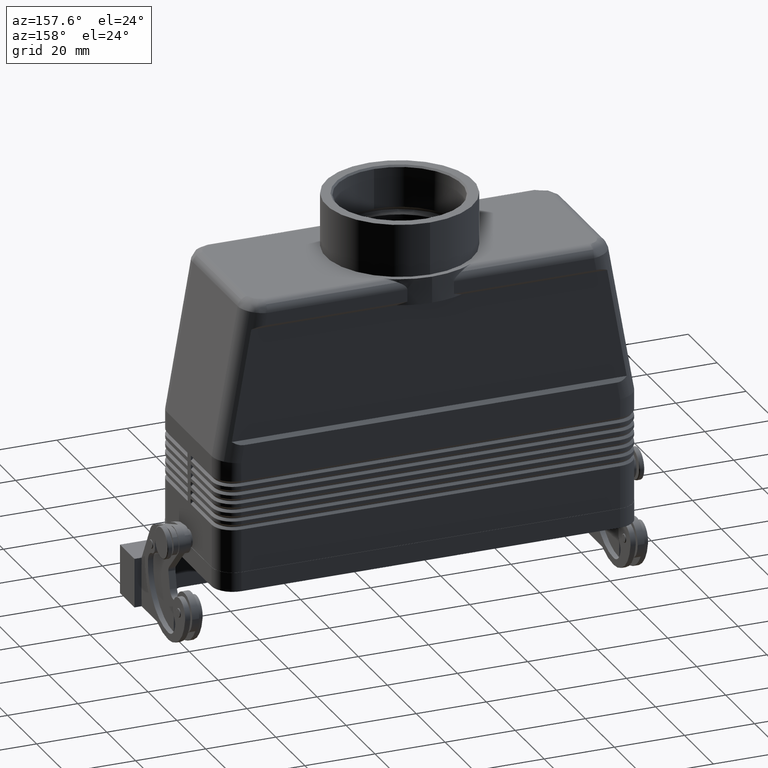
[diagram: clean part render]
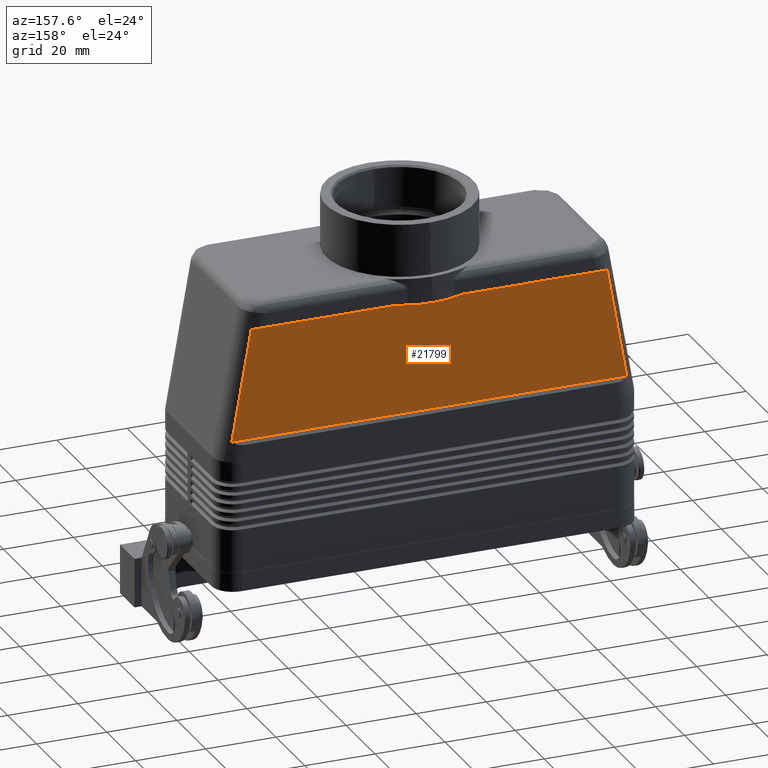
[diagram: same view with one face highlighted and labeled with its STEP entity id]
A machine part, auxiliary view. The second image highlights one B-rep face of the part: STEP entity #21799.
In plain terms, the highlighted face is a freeform B-spline surface patch.
Its self-contained STEP definition (entity closure, byte-faithful):
#4984=CARTESIAN_POINT('',(56.305431008555836,20.499999999999993,42.999999999999986));
#4985=VERTEX_POINT('',#4984);
#4993=CARTESIAN_POINT('',(50.751131116239200,20.500000000000000,74.500000000000014));
#4994=VERTEX_POINT('',#4993);
#4995=CARTESIAN_POINT('',(56.305431008555836,20.499999999999993,42.999999999999986));
#4996=DIRECTION('',(-0.173648177666930,2.221422E-016,0.984807753012208));
#4997=VECTOR('',#4996,31.985938274400993);
#4998=LINE('',#4995,#4997);
#4999=EDGE_CURVE('',#4985,#4994,#4998,.T.);
#5254=CARTESIAN_POINT('',(9.273618495495747,20.499999999999979,74.500000000000014));
#5255=VERTEX_POINT('',#5254);
#5364=CARTESIAN_POINT('',(-50.751131116239165,20.500000000000000,74.500000000000028));
#5365=VERTEX_POINT('',#5364);
#5373=CARTESIAN_POINT('',(-56.305431008555828,20.499999999999993,42.999999999999986));
#5374=VERTEX_POINT('',#5373);
#5375=CARTESIAN_POINT('',(-50.751131116239165,20.500000000000000,74.500000000000028));
#5376=DIRECTION('',(-0.173648177666931,-2.221422E-016,-0.984807753012208));
#5377=VECTOR('',#5376,31.985938274401015);
#5378=LINE('',#5375,#5377);
#5379=EDGE_CURVE('',#5365,#5374,#5378,.T.);
#21470=CARTESIAN_POINT('',(-9.273618495495747,20.499999999999979,74.500000000000014));
#21471=VERTEX_POINT('',#21470);
#21472=CARTESIAN_POINT('',(9.273618495495747,20.499999999999979,74.500000000000014));
#21473=DIRECTION('',(-1.0,0.0,0.0));
#21474=VECTOR('',#21473,18.547236990991493);
#21475=LINE('',#21472,#21474);
#21476=EDGE_CURVE('',#5255,#21471,#21475,.T.);
#21591=CARTESIAN_POINT('',(-9.273618495495747,20.499999999999979,74.500000000000014));
#21592=DIRECTION('',(-1.0,0.0,0.0));
#21593=VECTOR('',#21592,41.477512620743418);
#21594=LINE('',#21591,#21593);
#21595=EDGE_CURVE('',#21471,#5365,#21594,.T.);
#21620=CARTESIAN_POINT('',(50.751131116239200,20.500000000000000,74.500000000000014));
#21621=DIRECTION('',(-1.0,0.0,0.0));
#21622=VECTOR('',#21621,41.477512620743454);
#21623=LINE('',#21620,#21622);
#21624=EDGE_CURVE('',#4994,#5255,#21623,.T.);
#21781=CARTESIAN_POINT('',(56.305431008555850,20.499999999999996,42.999999999999986));
#21782=CARTESIAN_POINT('',(56.305431008555850,20.500000000000000,74.500000000000028));
#21783=CARTESIAN_POINT('',(-56.305431008555836,20.499999999999996,42.999999999999986));
#21784=CARTESIAN_POINT('',(-56.305431008555836,20.500000000000004,74.500000000000028));
#21785=B_SPLINE_SURFACE_WITH_KNOTS('',1,1,((#21781,#21783),(#21782,#21784)),.UNSPECIFIED.,.F.,.F.,.U.,(2,2),(2,2),(0.0,31.500000000000043),(0.0,112.610862017111690),.UNSPECIFIED.);
#21786=ORIENTED_EDGE('',*,*,#5379,.F.);
#21787=ORIENTED_EDGE('',*,*,#21595,.F.);
#21788=ORIENTED_EDGE('',*,*,#21476,.F.);
#21789=ORIENTED_EDGE('',*,*,#21624,.F.);
#21790=ORIENTED_EDGE('',*,*,#4999,.F.);
#21791=CARTESIAN_POINT('',(56.305431008555836,20.499999999999993,42.999999999999986));
#21792=DIRECTION('',(-1.0,0.0,0.0));
#21793=VECTOR('',#21792,112.610862017111660);
#21794=LINE('',#21791,#21793);
#21795=EDGE_CURVE('',#4985,#5374,#21794,.T.);
#21796=ORIENTED_EDGE('',*,*,#21795,.T.);
#21797=EDGE_LOOP('',(#21786,#21787,#21788,#21789,#21790,#21796));
#21798=FACE_OUTER_BOUND('',#21797,.T.);
#21799=ADVANCED_FACE('',(#21798),#21785,.F.);